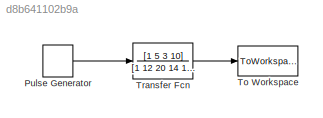
MODEL slx_d8b641102b9a
KIND model
BLOCK [DiscretePulseGenerator] Pulse Generator
  Amplitude = 1000
  Period = 20
  Ports = [0, 1]
  PulseType = Time based
  PulseWidth = .005
BLOCK [ToWorkspace] To Workspace
  MaxDataPoints = inf
  Ports = [1]
  SampleTime = -1
  VariableName = Out
BLOCK [TransferFcn] Transfer Fcn
  Denominator = [1 12 20 14 10]
  Numerator = [1 5 3 10]
LINE Pulse Generator:1 -> Transfer Fcn:1
LINE Transfer Fcn:1 -> To Workspace:1
